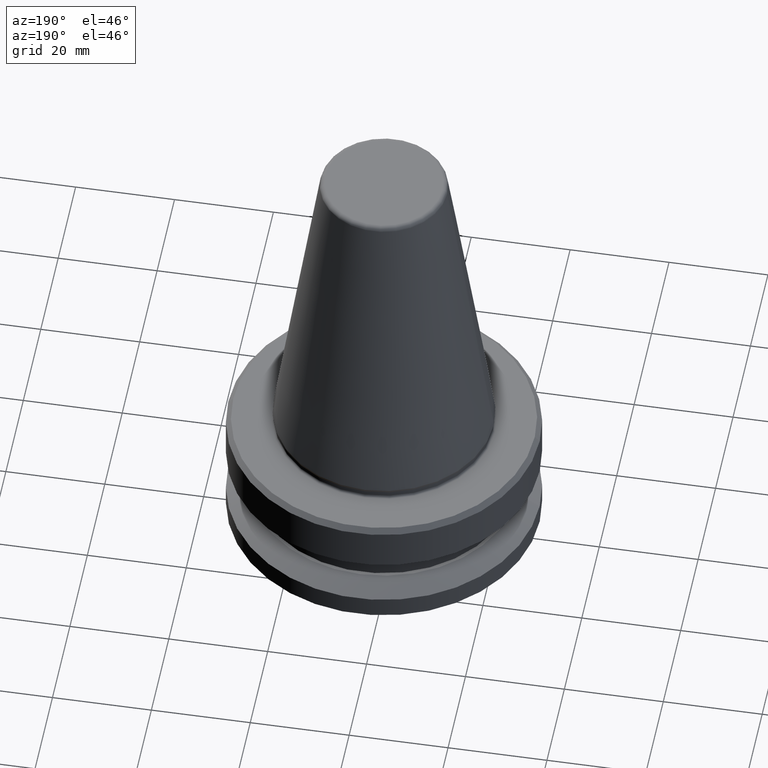
[diagram: clean part render]
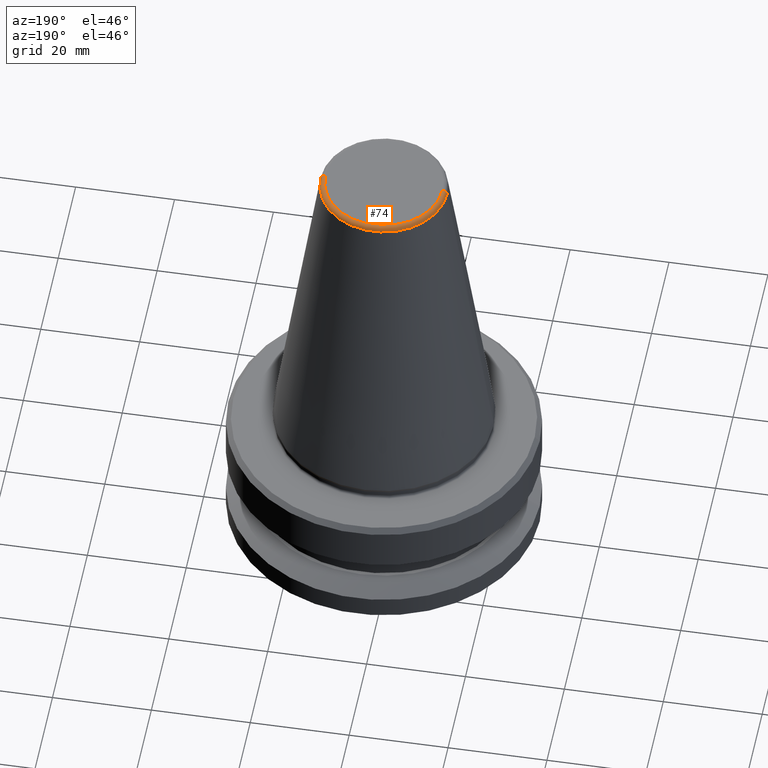
[diagram: same view with one face highlighted and labeled with its STEP entity id]
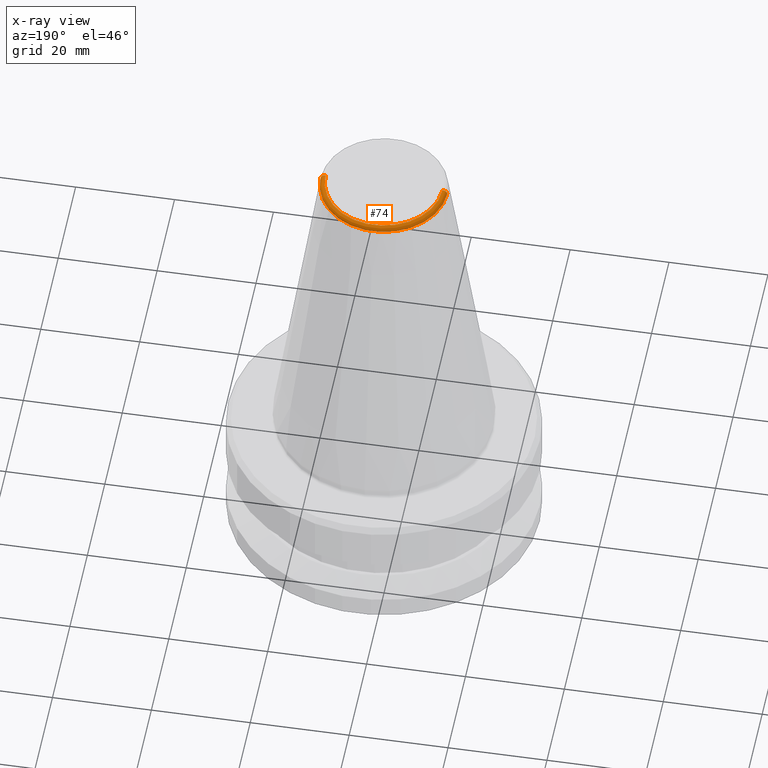
[diagram: x-ray of the same camera — body ghosted, the highlighted face saturated]
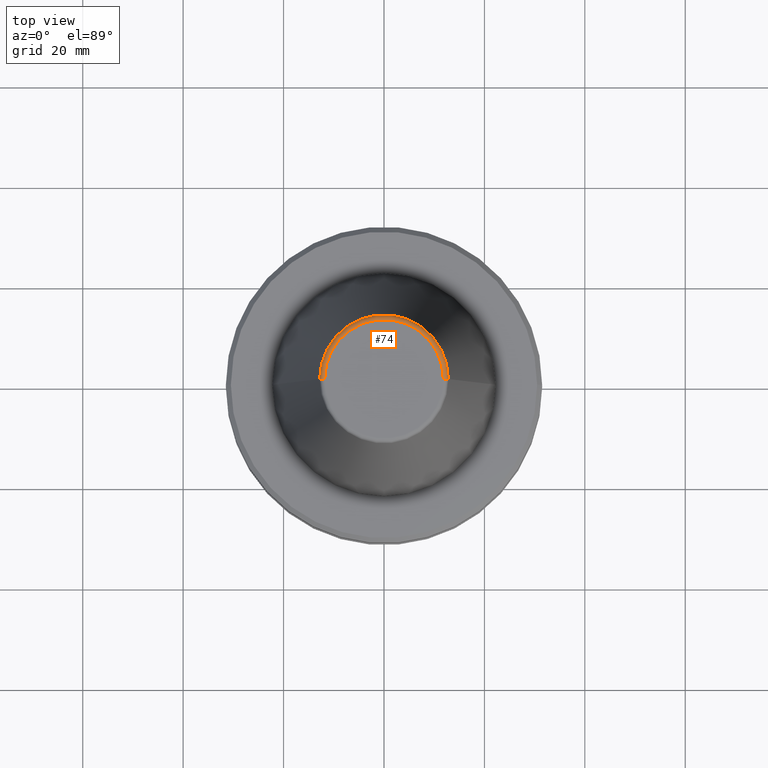
[diagram: same view with one face highlighted and labeled with its STEP entity id]
A machine part, auxiliary view. The second image highlights one B-rep face of the part: STEP entity #74.
The next image is the same camera in x-ray: the body ghosted, the highlighted face saturated — about 0% of this face is hidden behind the body in this view.
A second angle (top view) of the same face is appended — the face is thin or edge-on in the first view.
In plain terms, the highlighted toroidal blend (fillet) surface has major radius 11.8227 mm and minor (blend) radius 1 mm.
Its self-contained STEP definition (entity closure, byte-faithful):
#1 = CARTESIAN_POINT ( 'NONE',  ( 11.82266927716813000, 0.0000000000000000000, 65.40000000000057400 ) ) ;
#24 = FACE_OUTER_BOUND ( 'NONE', #312, .T. ) ;
#35 = DIRECTION ( 'NONE',  ( 1.000000000000000000, 0.0000000000000000000, 0.0000000000000000000 ) ) ;
#62 = DIRECTION ( 'NONE',  ( 1.000000000000000000, 0.0000000000000000000, 0.0000000000000000000 ) ) ;
#71 = EDGE_CURVE ( 'NONE', #811, #367, #368, .T. ) ;
#74 = ADVANCED_FACE ( 'NONE', ( #24 ), #942, .T. ) ;
#92 = DIRECTION ( 'NONE',  ( -0.0000000000000000000, -0.0000000000000000000, 1.000000000000000000 ) ) ;
#127 = DIRECTION ( 'NONE',  ( 0.0000000000000000000, 0.0000000000000000000, -1.000000000000000000 ) ) ;
#194 = AXIS2_PLACEMENT_3D ( 'NONE', #958, #937, #713 ) ;
#214 = DIRECTION ( 'NONE',  ( -0.0000000000000000000, -0.0000000000000000000, 1.000000000000000000 ) ) ;
#240 = AXIS2_PLACEMENT_3D ( 'NONE', #427, #266, #127 ) ;
#250 = CIRCLE ( 'NONE', #581, 0.9999999999999783500 ) ;
#266 = DIRECTION ( 'NONE',  ( 0.0000000000000000000, -1.000000000000000000, 0.0000000000000000000 ) ) ;
#278 = EDGE_CURVE ( 'NONE', #367, #536, #785, .T. ) ;
#312 = EDGE_LOOP ( 'NONE', ( #356, #636, #911, #357 ) ) ;
#316 = CIRCLE ( 'NONE', #194, 12.81220206925726000 ) ;
#356 = ORIENTED_EDGE ( 'NONE', *, *, #841, .T. ) ;
#357 = ORIENTED_EDGE ( 'NONE', *, *, #71, .F. ) ;
#367 = VERTEX_POINT ( 'NONE', #1 ) ;
#368 = CIRCLE ( 'NONE', #240, 0.9999999999999731300 ) ;
#405 = CARTESIAN_POINT ( 'NONE',  ( 0.0000000000000000000, 0.0000000000000000000, 64.40000000000057400 ) ) ;
#427 = CARTESIAN_POINT ( 'NONE',  ( 11.82266927716813000, 0.0000000000000000000, 64.40000000000057400 ) ) ;
#433 = DIRECTION ( 'NONE',  ( 1.224646799147353200E-016, 1.000000000000000000, 0.0000000000000000000 ) ) ;
#457 = CARTESIAN_POINT ( 'NONE',  ( 0.0000000000000000000, 0.0000000000000000000, 65.40000000000057400 ) ) ;
#536 = VERTEX_POINT ( 'NONE', #824 ) ;
#581 = AXIS2_PLACEMENT_3D ( 'NONE', #894, #433, #967 ) ;
#636 = ORIENTED_EDGE ( 'NONE', *, *, #659, .T. ) ;
#655 = CARTESIAN_POINT ( 'NONE',  ( 12.81220206925727100, 0.0000000000000000000, 64.54430818888879200 ) ) ;
#659 = EDGE_CURVE ( 'NONE', #705, #536, #250, .T. ) ;
#705 = VERTEX_POINT ( 'NONE', #979 ) ;
#713 = DIRECTION ( 'NONE',  ( 1.000000000000000000, 0.0000000000000000000, 0.0000000000000000000 ) ) ;
#785 = CIRCLE ( 'NONE', #830, 11.82266927716813000 ) ;
#811 = VERTEX_POINT ( 'NONE', #655 ) ;
#824 = CARTESIAN_POINT ( 'NONE',  ( -11.82266927716813000, 1.508450817090336400E-015, 65.40000000000057400 ) ) ;
#830 = AXIS2_PLACEMENT_3D ( 'NONE', #457, #92, #62 ) ;
#841 = EDGE_CURVE ( 'NONE', #811, #705, #316, .T. ) ;
#894 = CARTESIAN_POINT ( 'NONE',  ( -11.82266927716813000, 1.447859408766170200E-015, 64.40000000000057400 ) ) ;
#911 = ORIENTED_EDGE ( 'NONE', *, *, #278, .F. ) ;
#937 = DIRECTION ( 'NONE',  ( -0.0000000000000000000, -0.0000000000000000000, 1.000000000000000000 ) ) ;
#942 = TOROIDAL_SURFACE ( 'NONE', #993, 11.82266927716813000, 0.9999999999999783500 ) ;
#958 = CARTESIAN_POINT ( 'NONE',  ( 0.0000000000000000000, 0.0000000000000000000, 64.54430818888879200 ) ) ;
#967 = DIRECTION ( 'NONE',  ( -1.000000000000000000, 1.224646799147353900E-016, 0.0000000000000000000 ) ) ;
#979 = CARTESIAN_POINT ( 'NONE',  ( -12.81220206925727100, 1.569042225414501400E-015, 64.54430818888879200 ) ) ;
#993 = AXIS2_PLACEMENT_3D ( 'NONE', #405, #214, #35 ) ;